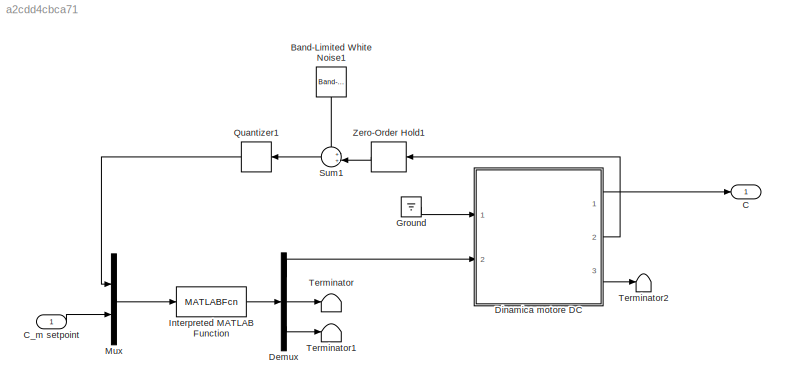
MODEL slx_a2cdd4cbca71
KIND model
CONFIG AbsTol = auto
CONFIG EnableMultiTasking = off
CONFIG FixedStep = auto
CONFIG MaxStep = auto
CONFIG MinStep = auto
CONFIG RelTol = 1e-3
CONFIG SampleTimeConstraint = Unconstrained
CONFIG Solver = VariableStepAuto
CONFIG SolverName = VariableStepAuto
CONFIG StartTime = 0.0
CONFIG StopTime = 10.0
BLOCK [Reference] Band-Limited White Noise1  REF=simulink/Sources/Band-Limited
White Noise
  Ports = [0, 1]
  SourceBlock = simulink/Sources/Band-Limited\nWhite Noise
  SourceProductBaseCode = SL
  SourceProductName = Simulink
  SourceType = Band-Limited White Noise.
BLOCK [Outport] C
  IconDisplay = Port number
  PortDimensions = 1
  SampleTime = Ts
BLOCK [Inport] C_m setpoint
  IconDisplay = Port number
  PortDimensions = 1
  SampleTime = Ts
BLOCK [Demux] Demux
  DisplayOption = bar
  Outputs = 3
  Ports = [1, 3]
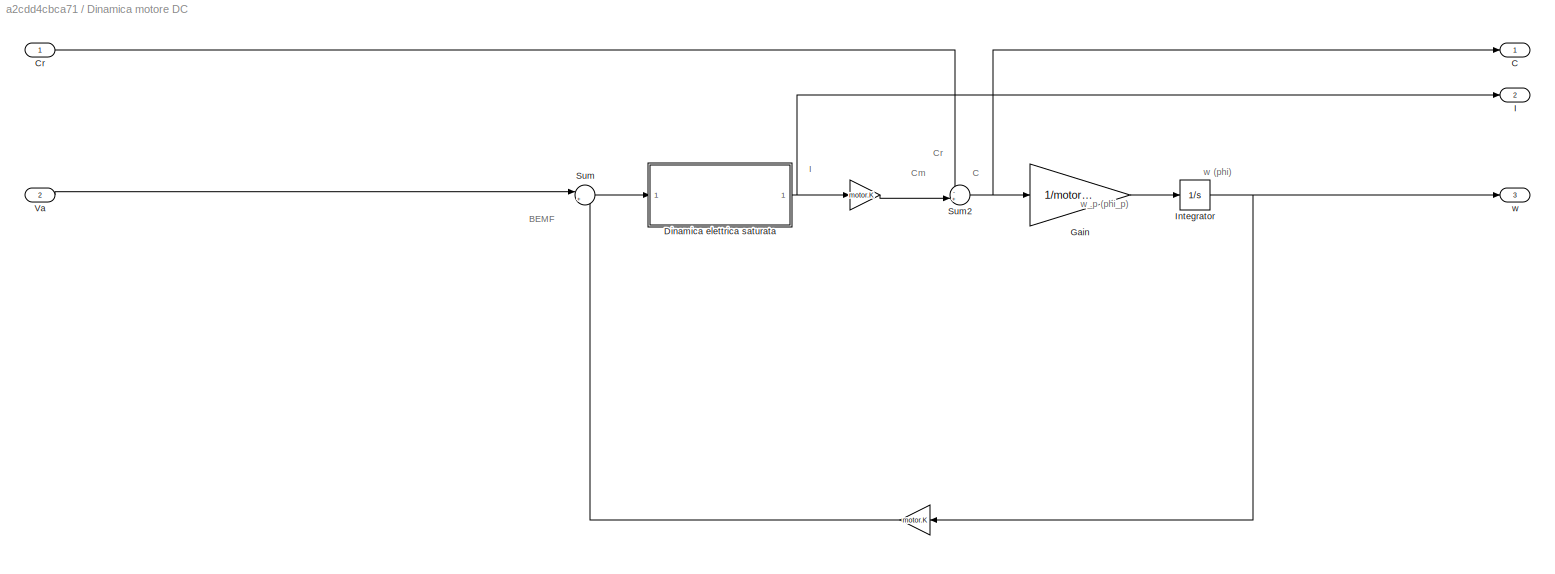
BLOCK [SubSystem] Dinamica motore DC
  Ports = [2, 3]
  RequestExecContextInheritance = off
BLOCK [Gain] Dinamica motore DC/ 
  Gain = motor.K
  OutDataTypeStr = Inherit: Inherit via internal rule
  ParamDataTypeStr = Inherit: Inherit via internal rule
  SaturateOnIntegerOverflow = off
BLOCK [Outport] Dinamica motore DC/C
  IconDisplay = Port number
BLOCK [Inport] Dinamica motore DC/Cr
  IconDisplay = Port number
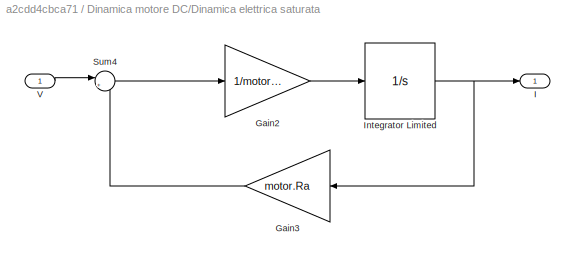
BLOCK [SubSystem] Dinamica motore DC/Dinamica elettrica saturata 
  Ports = [1, 1]
  RequestExecContextInheritance = off
BLOCK [Gain] Dinamica motore DC/Dinamica elettrica saturata /Gain2
  Gain = 1/motor.La
  OutDataTypeStr = Inherit: Inherit via internal rule
  ParamDataTypeStr = Inherit: Inherit via internal rule
  SaturateOnIntegerOverflow = off
BLOCK [Gain] Dinamica motore DC/Dinamica elettrica saturata /Gain3
  Gain = motor.Ra
  OutDataTypeStr = Inherit: Inherit via internal rule
  ParamDataTypeStr = Inherit: Inherit via internal rule
  SaturateOnIntegerOverflow = off
BLOCK [Outport] Dinamica motore DC/Dinamica elettrica saturata /I
  IconDisplay = Port number
BLOCK [Integrator] Dinamica motore DC/Dinamica elettrica saturata /Integrator Limited
  LimitOutput = on
  LowerSaturationLimit = -motor.Imax
  Ports = [1, 1]
  UpperSaturationLimit = motor.Imax
BLOCK [Sum] Dinamica motore DC/Dinamica elettrica saturata /Sum4
  IconShape = round
  InputSameDT = off
  Inputs = |+-
  OutDataTypeStr = Inherit: Inherit via internal rule
  Ports = [2, 1]
  SaturateOnIntegerOverflow = off
BLOCK [Inport] Dinamica motore DC/Dinamica elettrica saturata /V
  IconDisplay = Port number
BLOCK [Gain] Dinamica motore DC/Gain
  Gain = 1/motor.J_m_star
  OutDataTypeStr = Inherit: Inherit via internal rule
  ParamDataTypeStr = Inherit: Inherit via internal rule
  SaturateOnIntegerOverflow = off
BLOCK [Outport] Dinamica motore DC/I
  IconDisplay = Port number
  Port = 2
  PortDimensions = 1
BLOCK [Integrator] Dinamica motore DC/Integrator
  Ports = [1, 1]
BLOCK [Sum] Dinamica motore DC/Sum
  IconShape = round
  InputSameDT = off
  Inputs = |+-
  OutDataTypeStr = Inherit: Inherit via internal rule
  Ports = [2, 1]
  SaturateOnIntegerOverflow = off
BLOCK [Sum] Dinamica motore DC/Sum2
  IconShape = round
  InputSameDT = off
  Inputs = -+|
  OutDataTypeStr = Inherit: Inherit via internal rule
  Ports = [2, 1]
  SaturateOnIntegerOverflow = off
BLOCK [Inport] Dinamica motore DC/Va
  IconDisplay = Port number
  Port = 2
BLOCK [Outport] Dinamica motore DC/w
  IconDisplay = Port number
  Port = 3
BLOCK [Ground] Ground
BLOCK [MATLABFcn] Interpreted MATLAB Function
  MATLABFcn = controllore_motore(u)
  OutputDimensions = 3
  Ports = [1, 1]
BLOCK [Mux] Mux
  DisplayOption = signals
  Inputs = 2
  Ports = [2, 1]
BLOCK [Quantizer] Quantizer1
  QuantizationInterval = 1/sensitivity_arduino
BLOCK [Sum] Sum1
  IconShape = round
  InputSameDT = off
  Inputs = ++|
  OutDataTypeStr = Inherit: Inherit via internal rule
  Ports = [2, 1]
  SaturateOnIntegerOverflow = off
BLOCK [Terminator] Terminator
BLOCK [Terminator] Terminator1
BLOCK [Terminator] Terminator2
BLOCK [ZeroOrderHold] Zero-Order Hold1
  SampleTime = Ts_motore
ANNOTATION Dinamica motore DC: BEMF
ANNOTATION Dinamica motore DC: C
ANNOTATION Dinamica motore DC: Cm
ANNOTATION Dinamica motore DC: Cr
ANNOTATION Dinamica motore DC: I
ANNOTATION Dinamica motore DC: w (phi)
ANNOTATION Dinamica motore DC: w_p (phi_p)
LINE Band-Limited White Noise1:1 -> Sum1:1
LINE C_m setpoint:1 -> Mux:2
LINE Demux:1 -> Dinamica motore DC:2
LINE Demux:2 -> Terminator:1
LINE Demux:3 -> Terminator1:1
NET Dinamica motore DC/ :1 -> Dinamica motore DC/Sum2:2, Dinamica motore DC/Sum:2
LINE Dinamica motore DC/Cr:1 -> Dinamica motore DC/Sum2:1
LINE Dinamica motore DC/Dinamica elettrica saturata /Gain2:1 -> Dinamica motore DC/Dinamica elettrica saturata /Integrator Limited:1
LINE Dinamica motore DC/Dinamica elettrica saturata /Gain3:1 -> Dinamica motore DC/Dinamica elettrica saturata /Sum4:2
NET Dinamica motore DC/Dinamica elettrica saturata /Integrator Limited:1 -> Dinamica motore DC/Dinamica elettrica saturata /Gain3:1, Dinamica motore DC/Dinamica elettrica saturata /I:1
LINE Dinamica motore DC/Dinamica elettrica saturata /Sum4:1 -> Dinamica motore DC/Dinamica elettrica saturata /Gain2:1
LINE Dinamica motore DC/Dinamica elettrica saturata /V:1 -> Dinamica motore DC/Dinamica elettrica saturata /Sum4:1
NET Dinamica motore DC/Dinamica elettrica saturata :1 -> Dinamica motore DC/ :1, Dinamica motore DC/I:1
LINE Dinamica motore DC/Gain:1 -> Dinamica motore DC/Integrator:1
NET Dinamica motore DC/Integrator:1 -> Dinamica motore DC/ :1, Dinamica motore DC/w:1
NET Dinamica motore DC/Sum2:1 -> Dinamica motore DC/C:1, Dinamica motore DC/Gain:1
LINE Dinamica motore DC/Sum:1 -> Dinamica motore DC/Dinamica elettrica saturata :1
LINE Dinamica motore DC/Va:1 -> Dinamica motore DC/Sum:1
LINE Dinamica motore DC:1 -> C:1
LINE Dinamica motore DC:2 -> Zero-Order Hold1:1
LINE Dinamica motore DC:3 -> Terminator2:1
LINE Ground:1 -> Dinamica motore DC:1
LINE Interpreted MATLAB Function:1 -> Demux:1
LINE Mux:1 -> Interpreted MATLAB Function:1
LINE Quantizer1:1 -> Mux:1
LINE Sum1:1 -> Quantizer1:1
LINE Zero-Order Hold1:1 -> Sum1:2
note: NET lines group one-source signal fan-out (src -> all destinations, sorted); 1:1 wires keep LINE
